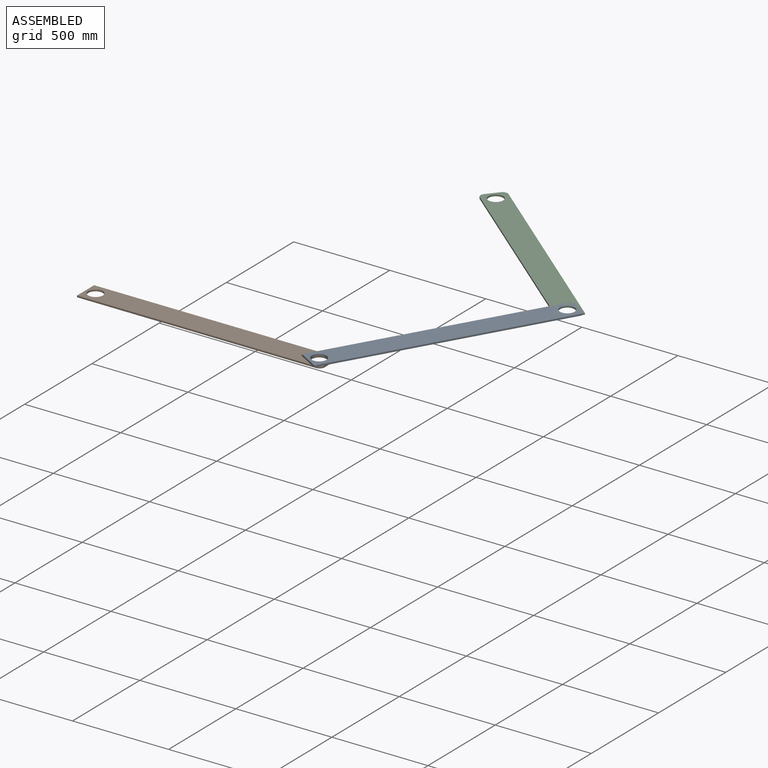
[diagram: assembled view]
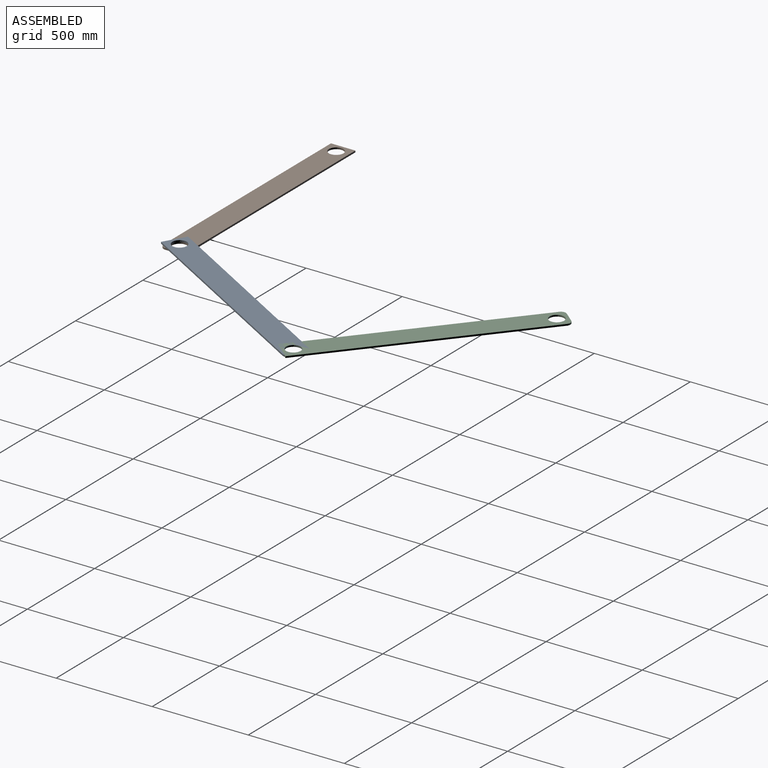
[diagram: assembled view, second angle]
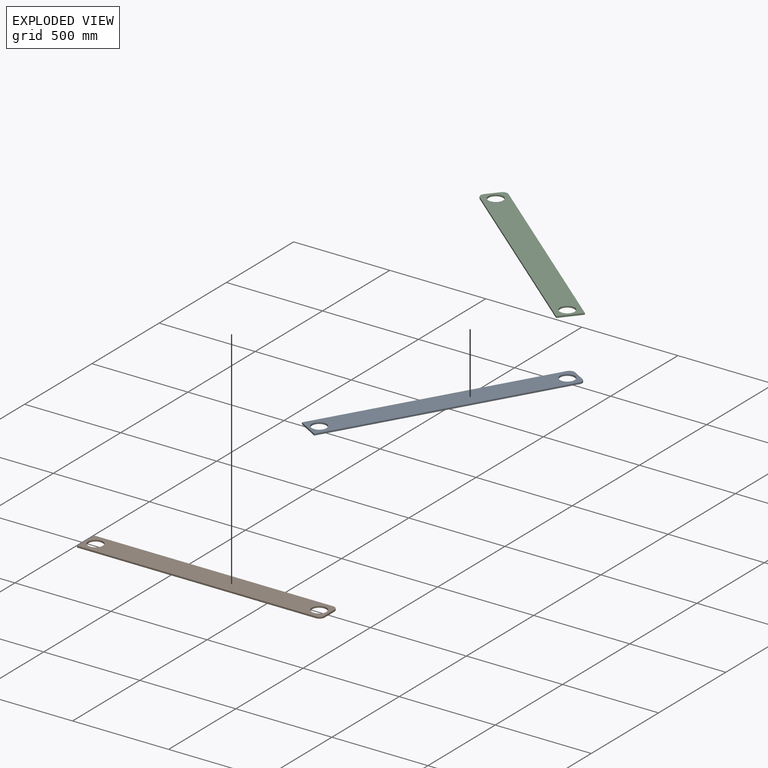
[diagram: exploded view]
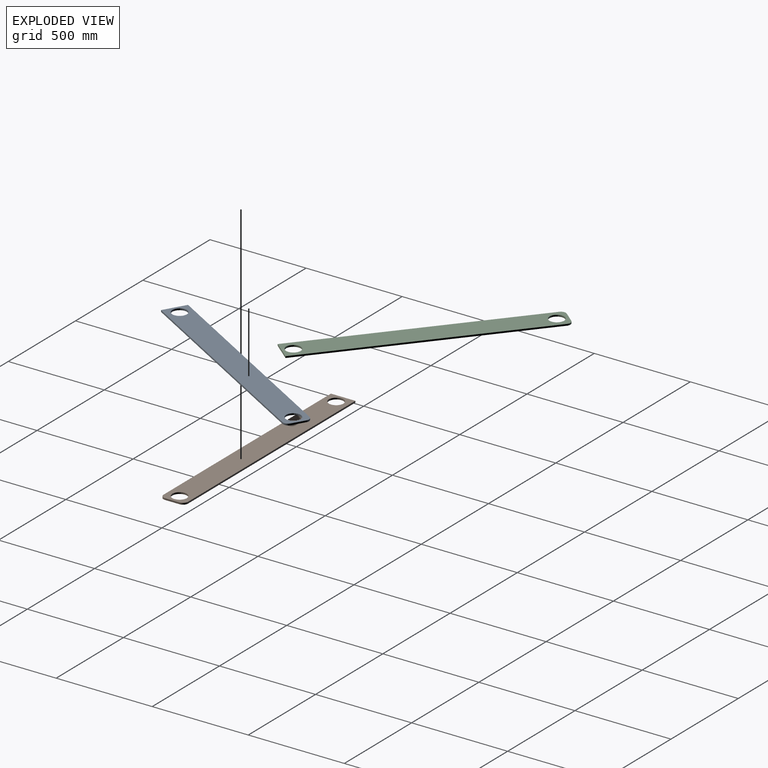
[diagram: exploded view, second angle]
ASSEMBLY  parts=3 mates=2
PART A: 10 faces, bbox 127x8.4x1270 mm
  f0: cylinder r=26.68mm len=26.68mm, axis (0,1,0), area 351.2mm2, adj f1,f7,f8,f9
  f1: plane 1243.32x8.38mm, normal (-1,0,0), area 10421.5mm2, adj f0,f2,f8,f9
  f2: plane 127x8.38mm, normal (0,0,-1), area 1064.5mm2, adj f1,f3,f8,f9
  f3: plane 1244.6x8.38mm, normal (1,0,0), area 10432.2mm2, adj f2,f4,f8,f9
  f4: cylinder r=25.4mm len=25.4mm, axis (0,1,0), area 334.4mm2, adj f3,f7,f8,f9
  f5: cylinder r=38.1mm len=76.2mm, axis (0,1,0), area 2006.6mm2, adj f8,f9
  f6: cylinder r=38.1mm len=76.2mm, axis (0,1,0), area 2006.6mm2, adj f8,f9
  f7: plane 74.92x8.38mm, normal (0,0,1), area 628mm2, adj f0,f4,f8,f9
  f8: plane 1270x127mm, normal (0,-1,0), area 151878.1mm2, adj f0,f1,f2,f3,f4,f5,f6,f7
  f9: plane 1270x127mm, normal (0,1,0), area 151878.1mm2, adj f0,f1,f2,f3,f4,f5,f6,f7
PART B: same geometry as A
PART C: same geometry as A
PLACE A rot(axis=(-0.93,0.25,-0.25),93.9deg) t=(528.96,365.36,1.06)mm
PLACE B rot(axis=(-0.58,0.58,-0.58),120deg) t=(-389.44,-63.2,-7.32)mm fixed
PLACE C rot(axis=(0.31,-0.67,-0.67),145.1deg) t=(484.81,1259.16,9.44)mm
MATE revolute A.f6 <-> B.f5  axis (0,0,-1) through (277.84,-63.2,1.06)mm
MATE revolute C.f6 <-> A.f5  axis (0,0,1) through (866.32,941.07,9.44)mm
